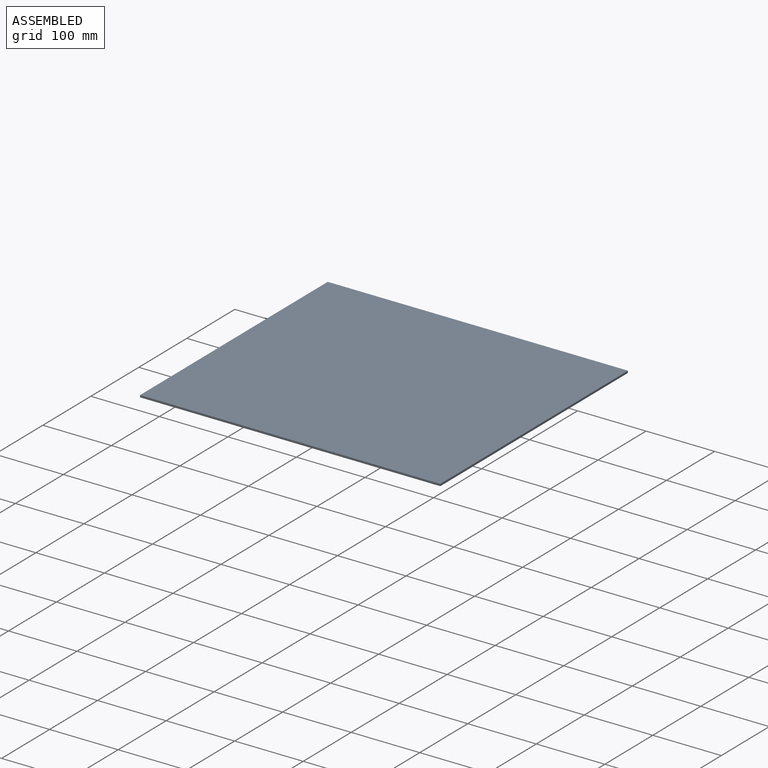
[diagram: assembled view]
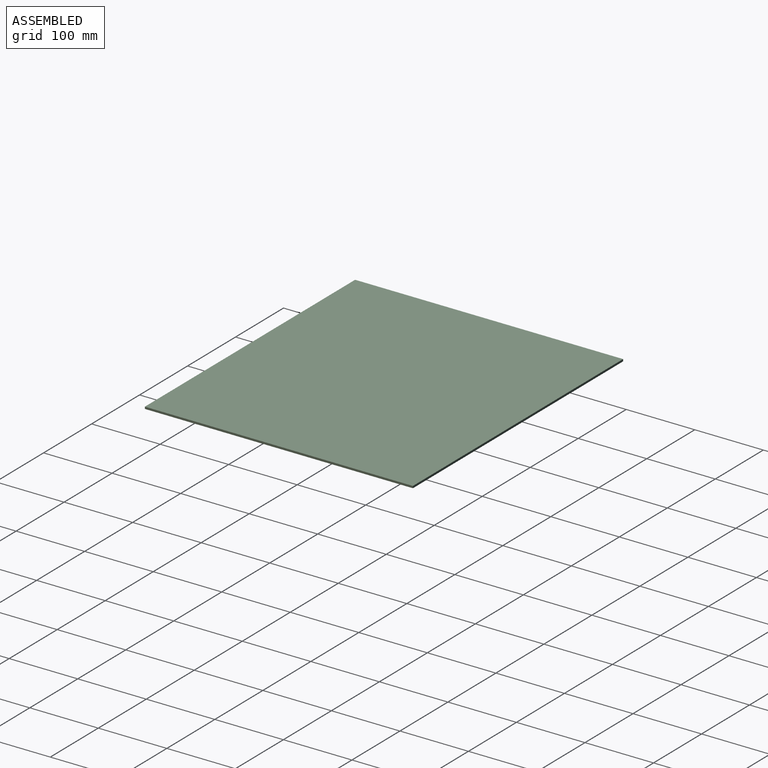
[diagram: assembled view, second angle]
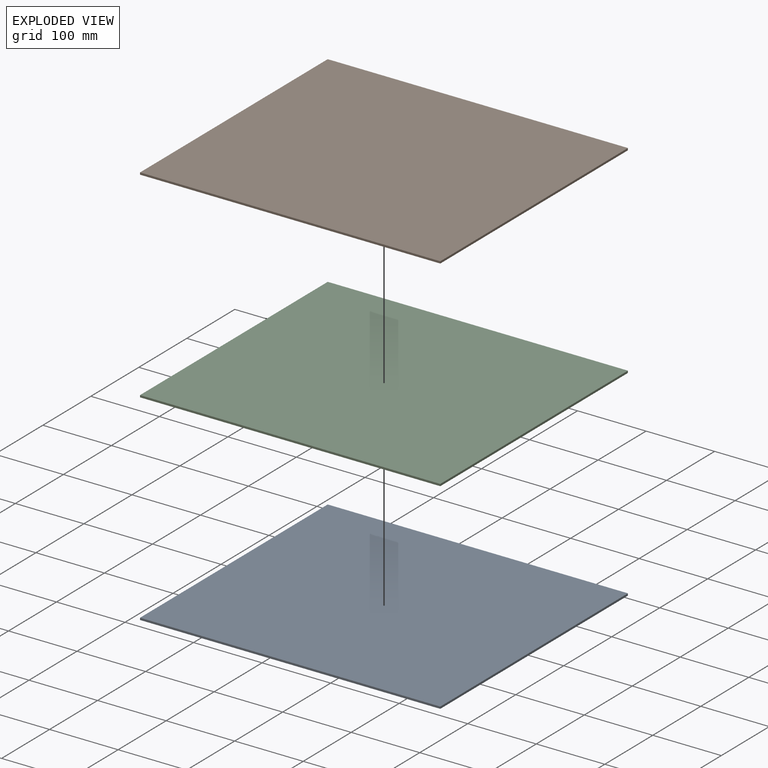
[diagram: exploded view]
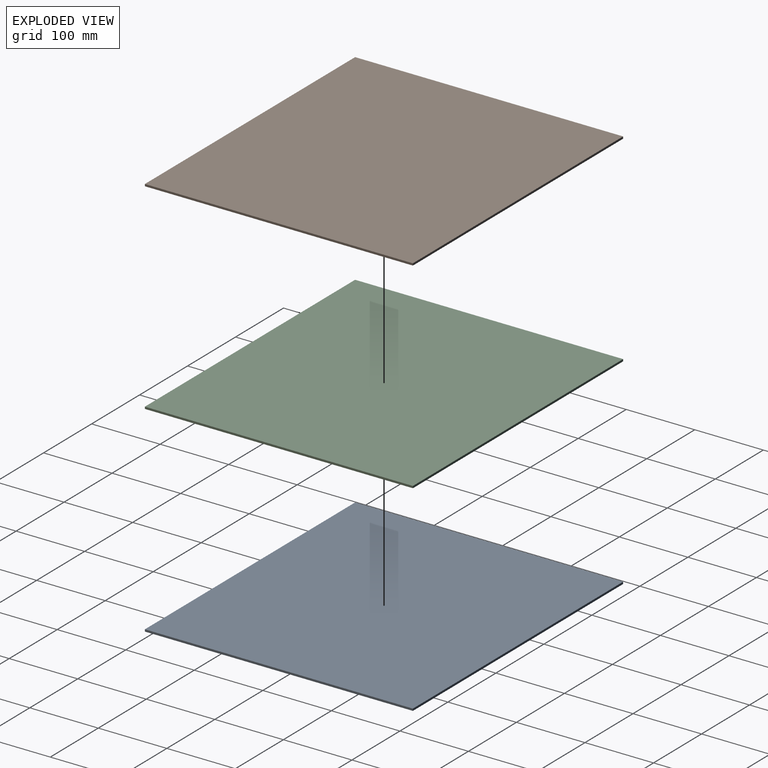
[diagram: exploded view, second angle]
FCSTD DOCUMENT  (FreeCAD 1.1R20260325 (Git shallow))
Label: msf003
License: All rights reserved
LicenseURL: https://en.wikipedia.org/wiki/All_rights_reserved
objects: Part::Box×5, App::LinkGroup×3, App::Link×3, Part::Cut×3, Spreadsheet::Sheet×1
note: 8 computed .brp shape members not serialized (recipe doc carries the construction recipe); baked Part::Feature solids carry a one-line shape summary decoded from their .brp

FEATURE [Part::Box] DrawerLeft  label="Drawer Left"
  AttacherType = Attacher::AttachEngine3D
  Height = 107
  Length = 18
  Placement = pos=(13,0,13) rot=(0,0,1;0rad)
  Width = 400
  expr: Width = <<settings>>.sizeY
FEATURE [Part::Box] DrawerRight  label="Drawer Right"
  AttacherType = Attacher::AttachEngine3D
  Height = 107
  Length = 18
  Placement = pos=(451,0,13) rot=(0,0,1;0rad)
  Width = 400
  expr: .Placement.Base.x = DrawerBottom.Shape.Faces[1].CenterOfMass.x - 9
  expr: Width = DrawerLeft.Shape.Edges[5].Length - 0
FEATURE [Part::Box] DrawerBack  label="Drawer Back"
  AttacherType = Attacher::AttachEngine3D
  Height = 107
  Length = 420
  Placement = pos=(31,382,13) rot=(0,0,1;0rad)
  Width = 18
  expr: .Placement.Base.y = DrawerLeft.Shape.Faces[3].CenterOfMass.y - 18
  expr: Length = DrawerFrontOutside.Shape.Edges[11].Length - 80
FEATURE [Part::Box] DrawerBottom  label="Drawer Bottom HDF"
  AttacherType = Attacher::AttachEngine3D
  Height = 3
  Length = 438
  Placement = pos=(22,0,22) rot=(0,0,1;0rad)
  Width = 391
  expr: Length = DrawerFrontOutside.Shape.Edges[9].Length - 62
  expr: Width = DrawerLeft.Shape.Edges[5].Length - 9
FEATURE [Part::Box] DrawerFrontOutside  label="Drawer Front Outside"
  AttacherType = Attacher::AttachEngine3D
  Height = 164
  Length = 500
  Placement = pos=(-9,-18,-7) rot=(0,0,1;0rad)
  Width = 18
  expr: Length = <<settings>>.sizeX
FEATURE [Spreadsheet::Sheet] Spreadsheet  label="settings"
  cells = A1='Settings; A2='Front width (size along X); B2(sizeX)=500; A3='Left side depth (size along Y); B3(sizeY)=400; A5='Note; A6='Front width (size along X) is linked via magicGlue to drawer size X. 'Left side size (size along Y) is linked via magicGlue to drawer size Y. The bottom part of the drawer is inside LinkGroup container to get parametric cut, so if you move the bottom up and down the cut will follow the bottom position.
FEATURE [App::LinkGroup] LinkGroup002  label="Container, Drawer Bottom HDF "
  ElementList = -> [DrawerBottom]
  LinkMode = 0
FEATURE [App::Link] Link  label="Knife, Drawer Bottom HDF "
  BOM = false
  LinkedObject = -> LinkGroup002
FEATURE [Part::Cut] Cut  label="Cut, Drawer Left "
  Base = -> DrawerLeft
  Tool = -> Link
FEATURE [App::Link] Link001  label="Knife, Drawer Bottom HDF 001"
  BOM = false
  LinkedObject = -> LinkGroup002
FEATURE [Part::Cut] Cut001  label="Cut, Drawer Back "
  Base = -> DrawerBack
  Tool = -> Link001
FEATURE [App::Link] Link002  label="Knife, Drawer Bottom HDF 002"
  BOM = false
  LinkedObject = -> LinkGroup002
FEATURE [Part::Cut] Cut002  label="Cut, Drawer Right "
  Base = -> DrawerRight
  Tool = -> Link002
FEATURE [App::LinkGroup] LinkGroup  label="Drawer, link this"
  ElementList = -> [DrawerLeft,DrawerRight,DrawerBack,DrawerFrontOutside,LinkGroup002,Cut,Cut001,Cut002]
  LinkMode = 0
FEATURE [App::LinkGroup] LinkGroup001  label="Drawer, hide this"
  ElementList = -> [LinkGroup,Spreadsheet]
  LinkMode = 0
